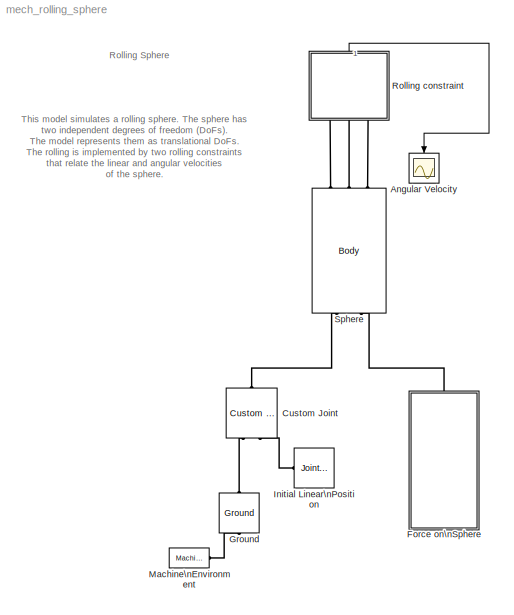
MODEL mech_rolling_sphere
KIND model
BLOCK [Scope] Angular Velocity
  DataFormat = StructureWithTime
  NumInputPorts = 1
  Ports = [1]
  TimeRange = 40
  YMax = 1
  YMin = -0.5
BLOCK [Reference] Custom Joint  REF=mblibv1/Joints/Custom Joint
  ClassName = Joint
  CutJoint = off
  DialogClass = JointBlock
  LConnTagsString = __newl0|SA1
  LeftPortType = blob
  MarkAsCut = off
  NumSAPorts = 1
  PhysicalDomain = mechanical
  Ports = [0, 0, 0, 0, 0, 2, 1]
  PrimitiveProps = P1$WORLD$[1 0 0]$prismatic#P2$WORLD$[0 1 0]$prismatic#S$WORLD$[0 0 1]$spherical
  Primitives = prismatic_prismatic_spherical
  RConnTagsString = __newr0
  RightPortType = blob
  SourceBlock = mblibv1/Joints/Custom Joint
  SourceType = msb
  SubClassName = custom_joint
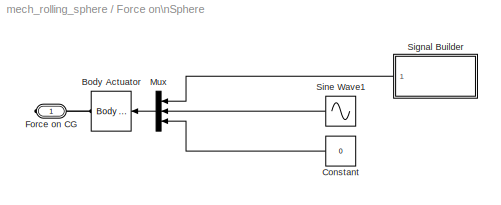
BLOCK [SubSystem] Force on\nSphere
  MinAlgLoopOccurrences = off
  Ports = [0, 0, 0, 0, 0, 0, 1]
  RTWSystemCode = Auto
  TreatAsAtomicUnit = off
BLOCK [Reference] Force on\nSphere/Body Actuator  REF=mblibv1/Sensors & \nActuators/Body Actuator
  AccelerationUnits = m/s^2
  ActiveIO = on
  ActuationStyle = Force
  Angle = off
  AngleUnits = deg
  ArcAccelerationUnits = deg/s^2
  ArcVelocityUnits = deg/s
  ClassName = BodyActuatorForceTorque
  CoordPosition = on
  CoordPositionUnits = m
  DialogClass = MechanicalActuatorBlock
  Force = on
  ForceUnits = N
  Opaque = on
  PhysicalDomain = Mechanical
  PortType = blob
  Ports = [1, 0, 0, 0, 0, 0, 1]
  ReferenceFrame = Absolute (World)
  ShowPortLabels = on
  SourceBlock = mblibv1/Sensors & \nActuators/Body Actuator
  SourceType = msb
  Torque = off
  TorqueUnits = N-m
  VelocityUnits = m/s
  Width = 3
BLOCK [Constant] Force on\nSphere/Constant
  Value = 0
BLOCK [PMIOPort] Force on\nSphere/Force on CG
  Port = 1
  Side = Right
BLOCK [Mux] Force on\nSphere/Mux
  DisplayOption = bar
  Inputs = 3
  Ports = [3, 1]
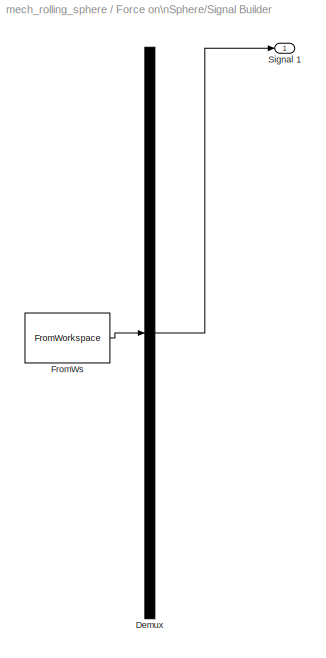
BLOCK [SubSystem] Force on\nSphere/Signal Builder
  ClipboardFcn = sigbuilder_block('clipboard');
  CloseFcn = sigbuilder_block('close');
  CopyFcn = sigbuilder_block('copy');
  DeleteFcn = sigbuilder_block('delete');
  LoadFcn = sigbuilder_block('load');
  MaskDescription = Sigbuilder GUI
  MaskDisplay = plot(0,0,100,100,[10,10,40,40,10],[80,20,20,80,80],[40,10],[50,50], [40,27,10],[65,72,56],[40,25,25,10],[28,28,43,43]);
  MaskIconFrame = on
  MaskIconOpaque = off
  MaskIconRotate = port
  MaskIconUnits = autoscale
  MaskInitialization = if ~strcmp(get_param(bdroot(gcb),'SimulationStatus'),'stopped') tuvar = sigbuilder_block('maskInit'); end
  MaskType = Sigbuilder block
  MinAlgLoopOccurrences = off
  ModelCloseFcn = sigbuilder_block('modelClose');
  NameChangeFcn = sigbuilder_block('namechange');
  OpenFcn = sigbuilder_block('open',[50 50 520 400 ]);
  Ports = [0, 1]
  PreSaveFcn = sigbuilder_block('preSave');
  RTWSystemCode = Auto
  StartFcn = sigbuilder_block('start');
  StopFcn = sigbuilder_block('stop');
  Tag = STV Subsys
  TreatAsAtomicUnit = off
BLOCK [Demux] Force on\nSphere/Signal Builder/Demux
  Outputs = 1
  Ports = [1, 1]
  Tag = STV Demux
BLOCK [FromWorkspace] Force on\nSphere/Signal Builder/FromWs
  SampleTime = 0
  SigBuilderData = DataTag0
  Tag = STV FromWs
  VariableName = tuvar
  VnvData = DataTag1
BLOCK [Outport] Force on\nSphere/Signal Builder/Signal 1
  BusOutputAsStruct = off
  IconDisplay = Port number
  Tag = STV Outport
BLOCK [Sin] Force on\nSphere/Sine Wave1
  Amplitude = 0.1
  Frequency = 0.7
  Ports = [0, 1]
  SampleTime = 0
  SineType = Time based
BLOCK [Reference] Ground  REF=mblibv1/Bodies/Ground
  ClassName = Ground
  CoordPosition = [0 0 1]
  CoordPositionUnits = m
  DialogClass = GroundBlock
  LeftPortType = env
  MachineId = [0 0]
  Opaque = on
  PhysicalDomain = Mechanical
  Ports = [0, 0, 0, 0, 0, 1, 1]
  RightPortType = workingframe
  ShowEnvPort = on
  ShowPortLabels = on
  SourceBlock = mblibv1/Bodies/Ground
  SourceType = msb
  StateVectorMgrId = -1
  UserData = DataTag2
  UserDataPersistent = on
BLOCK [Reference] Initial Linear\nPosition  REF=mblibv1/Sensors & \nActuators/Joint Initial Condition
  ClassName = InitialCondition
  DialogClass = InitialConditionBlock
  InitialConditions = P1$true$0$m$rad$1$cm/s$rad/s#P2$true$0$m$rad$1$cm/s$rad/s#P3$false$0$m$rad$0$m/s$rad/s#R1$false$0$m$rad$0$m/s$rad/s#R2$false$0$m$rad$0$m/s$rad/s#R3$false$0$m$rad$0$m/s$rad/s#S$false$0$m$rad$0$m/s$rad/s
  Opaque = on
  PhysicalDomain = Mechanical
  Ports = [0, 0, 0, 0, 0, 0, 1]
  ShowPortLabels = on
  SourceBlock = mblibv1/Sensors & \nActuators/Joint Initial Condition
  SourceType = msb
BLOCK [Reference] Machine\nEnvironment  REF=mblibv1/Bodies/Machine\nEnvironment
  AnalysisType = Forward dynamics
  AngularAssemblyTolerance = 1e-3
  AngularAssemblyToleranceUnits = rad
  ClassName = Environment
  ConstraintAbsTolerance = 1e-4
  ConstraintRelTolerance = 1e-4
  ConstraintSolverType = Stabilizing
  DialogController = MECH.DialogSource
  DialogTemplateClass = MECH.MachineEnvironment
  Dimensionality = 3D Only
  Gravity = [0 0 -9.81]
  GravityAsSignal = off
  GravityUnits = m/s^2
  LinearAssemblyTolerance = 1e-3
  LinearAssemblyToleranceUnits = m
  Opaque = on
  PerturbationSize = 1e-5
  PhysicalDomain = Mechanical
  PortType = env
  Ports = [0, 0, 0, 0, 0, 0, 1]
  ShowPortLabels = on
  SourceBlock = mblibv1/Bodies/Machine\nEnvironment
  SourceType = Mechanical
  StatePerturbationType = Fixed
  SyncWhenCopied = off
  Tag = Factory ground
  UseRobustSingularityHandling = off
  VisualizeMachine = on
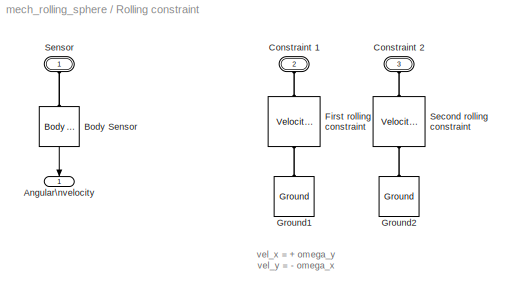
BLOCK [SubSystem] Rolling constraint
  MinAlgLoopOccurrences = off
  Ports = [0, 1, 0, 0, 0, 3]
  RTWSystemCode = Auto
  TreatAsAtomicUnit = off
BLOCK [Outport] Rolling constraint/Angular\nvelocity
  BusOutputAsStruct = off
  IconDisplay = Port number
BLOCK [Reference] Rolling constraint/Body Sensor  REF=mblibv1/Sensors & \nActuators/Body Sensor
  Acceleration = off
  AccelerationUnits = m/s^2
  ActiveIO = on
  Angle = on
  AngleUnits = deg
  ArcAcceleration = off
  ArcAccelerationUnits = deg/s^2
  ArcVelocity = on
  ArcVelocityUnits = rad/s
  ClassName = BodySensor
  CoordPosition = off
  CoordPositionUnits = m
  DialogClass = MechanicalSensorBlock
  Muxed = on
  Opaque = on
  OutputVector = [ 3 ]
  PhysicalDomain = Mechanical
  PortType = blob
  Ports = [0, 1, 0, 0, 0, 1]
  Pose = off
  Quaternion = on
  QuaternionDDT = off
  QuaternionDT = off
  QuaternionUnits = off
  ReferenceFrame = Absolute (World)
  ShowPortLabels = on
  SourceBlock = mblibv1/Sensors & \nActuators/Body Sensor
  SourceType = msb
  Velocity = off
  VelocityUnits = m/s
  Width = 3
BLOCK [PMIOPort] Rolling constraint/Constraint 1
  Port = 2
  Side = Left
BLOCK [PMIOPort] Rolling constraint/Constraint 2
  Port = 3
  Side = Left
BLOCK [Reference] Rolling constraint/First rolling constraint  REF=mblibv1/Constraints & \nDrivers/Velocity Driver
  ClassName = ConstantVelocity
  Coef_Omega_Base = [0 -1 0]
  Coef_Omega_Follower = [0 0 0]
  Coef_V_Base = [1 0 0]
  Coef_V_Follower = [0 0 0]
  Csys_Omega_Base = WORLD
  Csys_Omega_Follower = WORLD
  Csys_V_Base = WORLD
  Csys_V_Follower = WORLD
  DialogClass = ConstantVelocityConstraint
  LConnTagsString = __newl0
  LeftPortType = blob
  NumSAPorts = 0
  PhysicalDomain = mechanical
  Ports = [0, 0, 0, 0, 0, 1, 1]
  RConnTagsString = __newr0
  RightPortType = blob
  SourceBlock = mblibv1/Constraints & \nDrivers/Velocity Driver
  SourceType = ConstantVelocityConstraint
  SubClassName = Unknown
  Unit_Omega = rad/s
  Unit_V = m/s
BLOCK [Reference] Rolling constraint/Ground1  REF=mblibv1/Bodies/Ground
  ClassName = Ground
  CoordPosition = [0 0 0]
  CoordPositionUnits = m
  DialogClass = GroundBlock
  LeftPortType = env
  MachineId = [0 0]
  Opaque = on
  PhysicalDomain = Mechanical
  Ports = [0, 0, 0, 0, 0, 0, 1]
  RightPortType = workingframe
  ShowEnvPort = off
  ShowPortLabels = on
  SourceBlock = mblibv1/Bodies/Ground
  SourceType = msb
  StateVectorMgrId = -1
  UserData = DataTag3
  UserDataPersistent = on
BLOCK [Reference] Rolling constraint/Ground2  REF=mblibv1/Bodies/Ground
  ClassName = Ground
  CoordPosition = [0 0 0]
  CoordPositionUnits = m
  DialogClass = GroundBlock
  LeftPortType = env
  MachineId = [0 0]
  Opaque = on
  PhysicalDomain = Mechanical
  Ports = [0, 0, 0, 0, 0, 0, 1]
  RightPortType = workingframe
  ShowEnvPort = off
  ShowPortLabels = on
  SourceBlock = mblibv1/Bodies/Ground
  SourceType = msb
  StateVectorMgrId = -1
  UserData = DataTag4
  UserDataPersistent = on
BLOCK [Reference] Rolling constraint/Second rolling constraint  REF=mblibv1/Constraints & \nDrivers/Velocity Driver
  ClassName = ConstantVelocity
  Coef_Omega_Base = [1 0 0]
  Coef_Omega_Follower = [0 0 0]
  Coef_V_Base = [0 1 0]
  Coef_V_Follower = [0 0 0]
  Csys_Omega_Base = WORLD
  Csys_Omega_Follower = WORLD
  Csys_V_Base = WORLD
  Csys_V_Follower = WORLD
  DialogClass = ConstantVelocityConstraint
  LConnTagsString = __newl0
  LeftPortType = blob
  NumSAPorts = 0
  PhysicalDomain = mechanical
  Ports = [0, 0, 0, 0, 0, 1, 1]
  RConnTagsString = __newr0
  RightPortType = blob
  SourceBlock = mblibv1/Constraints & \nDrivers/Velocity Driver
  SourceType = ConstantVelocityConstraint
  SubClassName = Unknown
  Unit_Omega = rad/s
  Unit_V = m/s
BLOCK [PMIOPort] Rolling constraint/Sensor
  Port = 1
  Side = Left
BLOCK [Reference] Sphere  REF=mblibv1/Bodies/Body
  CG = Left$CG$[0 0 0]$CS1$CS1$m$[0 0 0]$Euler X-Y-Z$deg$WORLD$false
  ClassName = Body
  Density = 1
  DensityUnits = kg/m^3
  DensityUse = false
  DialogClass = MechanicalBodyBlock
  Inertia = (2/5)*eye(3)
  InertiaUnits = kg*m^2
  LConnTagsString = CS1|CS5
  LeftPortType = workingframe
  Mass = 1
  MassUnits = kg
  PhysicalDomain = mechanical
  Ports = [0, 0, 0, 0, 0, 2, 3]
  RConnTagsString = CS3|CS4|CS2
  RightPortType = workingframe
  Shape = Cylinder
  ShapeDims = [1 1]
  ShapeUnits = m
  ShapeUse = false
  SourceBlock = mblibv1/Bodies/Body
  SourceType = msb
  SubClassName = Unknown
  WorkingFrames = Left$CS1$[0 0 0]$ADJOINING$ADJOINING$m$[0 0 0]$Euler X-Y-Z$deg$WORLD$true#Right$CS3$[0 0 0]$CS1$CS1$m$[0 0 0]$Euler X-Y-Z$deg$WORLD$true#Right$CS4$[0 0 0]$CS1$CS1$m$[0 0 0]$Euler X-Y-Z$deg$WORLD$true#Right$CS2$[0 0 0]$CS1$CS1$m$[0 0 0]$Euler X-Y-Z$deg$WORLD$true#Left$CS5$[0 0 0]$CS1$CS1$m$[0 0 0]$Euler X-Y-Z$deg$WORLD$true
ANNOTATION (root): Rolling Sphere
ANNOTATION (root): This model simulates a rolling sphere. The sphere has\ntwo independent degrees of freedom (DoFs).\nThe model represents them as translational DoFs.\nThe rolling is implemented by two rolling constraints\nthat relate the linear and angular velocities\nof the sphere.
ANNOTATION Rolling constraint: vel_x = + omega_y\nvel_y = - omega_x
LINE Force on\nSphere/Constant:1 -> Force on\nSphere/Mux:3
LINE Force on\nSphere/Mux:1 -> Force on\nSphere/Body Actuator:1
LINE Force on\nSphere/Signal Builder/Demux:1 -> Force on\nSphere/Signal Builder/Signal 1:1
LINE Force on\nSphere/Signal Builder/FromWs:1 -> Force on\nSphere/Signal Builder/Demux:1
LINE Force on\nSphere/Signal Builder:1 -> Force on\nSphere/Mux:1
LINE Force on\nSphere/Sine Wave1:1 -> Force on\nSphere/Mux:2
LINE Rolling constraint/Body Sensor:1 -> Rolling constraint/Angular\nvelocity:1
LINE Rolling constraint:1 -> Angular Velocity:1
PLINE Custom Joint:LConn1 -- Ground:RConn1
PLINE Custom Joint:LConn2 -- Initial Linear\nPosition:RConn1
PLINE Custom Joint:RConn1 -- Sphere:LConn1
PLINE Force on\nSphere/Body Actuator:RConn1 -- Force on\nSphere/Force on CG:RConn1
PLINE Force on\nSphere:RConn1 -- Sphere:LConn2
PLINE Ground:LConn1 -- Machine\nEnvironment:RConn1
PLINE Rolling constraint/Body Sensor:LConn1 -- Rolling constraint/Sensor:RConn1
PLINE Rolling constraint/Constraint 1:RConn1 -- Rolling constraint/First rolling constraint:LConn1
PLINE Rolling constraint/Constraint 2:RConn1 -- Rolling constraint/Second rolling constraint:LConn1
PLINE Rolling constraint/First rolling constraint:RConn1 -- Rolling constraint/Ground1:RConn1
PLINE Rolling constraint/Ground2:RConn1 -- Rolling constraint/Second rolling constraint:RConn1
PLINE Rolling constraint:LConn1 -- Sphere:RConn1
PLINE Rolling constraint:LConn2 -- Sphere:RConn2
PLINE Rolling constraint:LConn3 -- Sphere:RConn3
